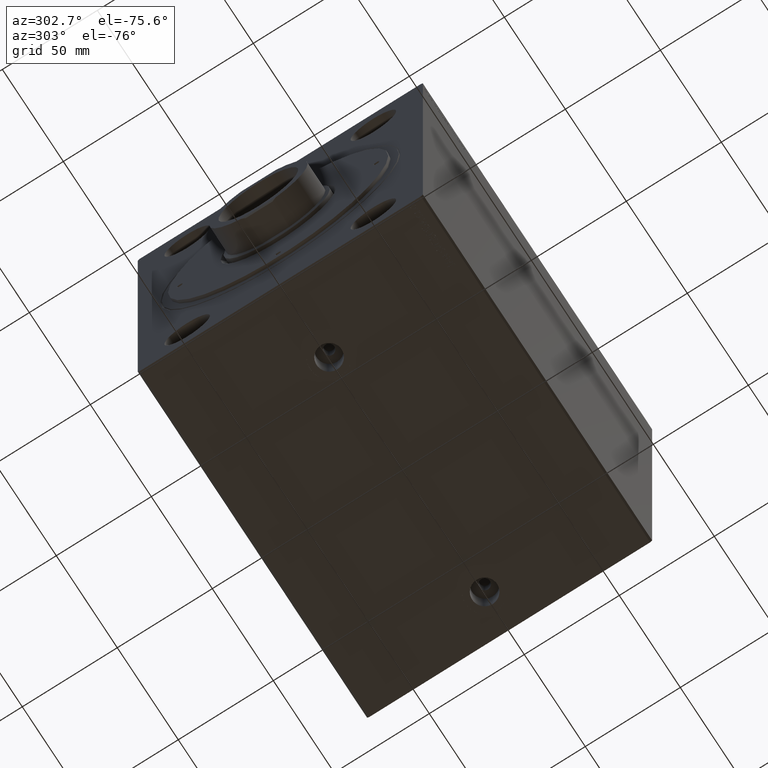
[diagram: clean part render]
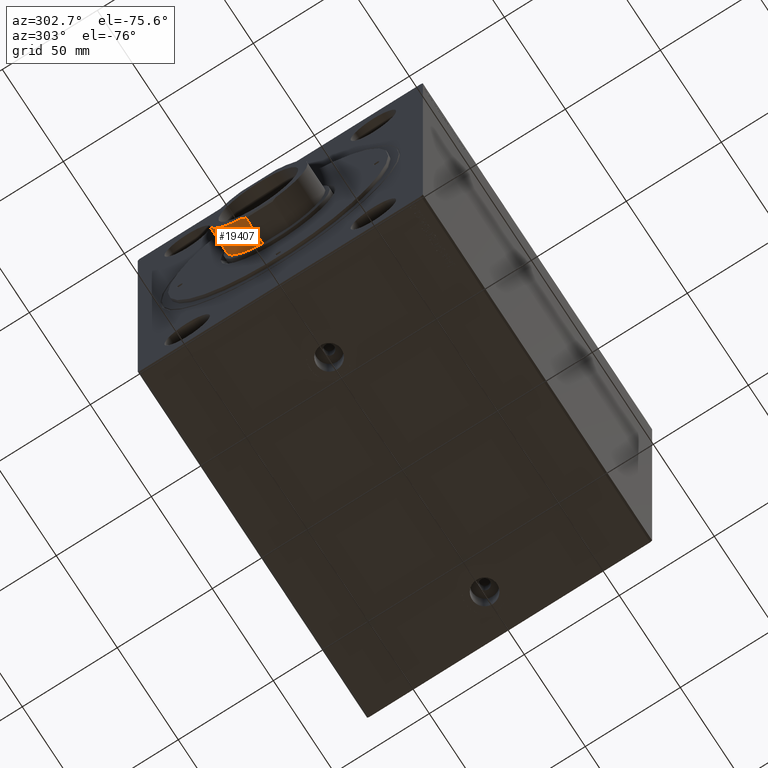
[diagram: same view with one face highlighted and labeled with its STEP entity id]
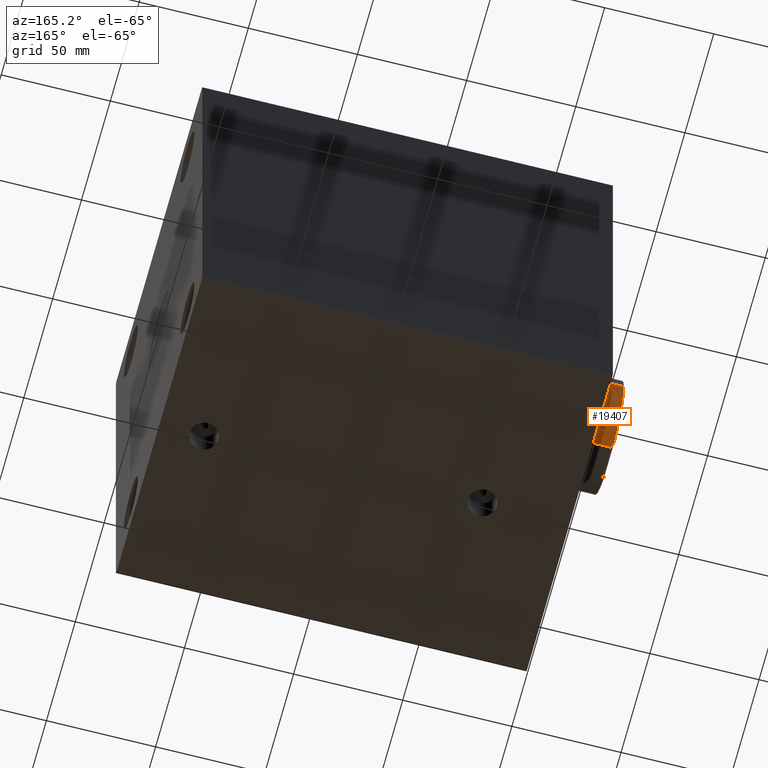
[diagram: same view with one face highlighted and labeled with its STEP entity id]
A machine part, auxiliary view. The second image highlights one B-rep face of the part: STEP entity #19407.
A second angle (auxiliary view) of the same face is appended — the face is thin or edge-on in the first view.
In plain terms, the highlighted cylindrical surface (partial cylindrical patch) has radius 25.96 mm, axis along (-1, 0, 0).
Its self-contained STEP definition (entity closure, byte-faithful):
#408 = AXIS2_PLACEMENT_3D ( 'NONE', #42984, #11752, #42318 ) ;
#1447 = CYLINDRICAL_SURFACE ( 'NONE', #408, 25.95999999999999019 ) ;
#1861 = AXIS2_PLACEMENT_3D ( 'NONE', #9338, #26807, #33569 ) ;
#3546 = LINE ( 'NONE', #41706, #3974 ) ;
#3655 = CARTESIAN_POINT ( 'NONE',  ( 24.29000000000004178, -9.160649540289041326, 103.0000000000000142 ) ) ;
#3974 = VECTOR ( 'NONE', #41006, 1000.000000000000000 ) ;
#4488 = CARTESIAN_POINT ( 'NONE',  ( 24.79513420022394143, -7.726647363026342141, 102.4948657997761217 ) ) ;
#5509 = EDGE_LOOP ( 'NONE', ( #30874, #16136, #5639, #27858, #14918 ) ) ;
#5639 = ORIENTED_EDGE ( 'NONE', *, *, #44099, .T. ) ;
#8285 = VERTEX_POINT ( 'NONE', #24688 ) ;
#8941 = CARTESIAN_POINT ( 'NONE',  ( 24.29000000000004178, -9.160649540289041326, 103.0000000000000142 ) ) ;
#9031 = CIRCLE ( 'NONE', #1861, 25.95999999999999019 ) ;
#9338 = CARTESIAN_POINT ( 'NONE',  ( 0.000000000000000000, -1.475410158749645070E-14, 103.0000000000000142 ) ) ;
#9816 = VECTOR ( 'NONE', #12942, 1000.000000000000000 ) ;
#10357 = CARTESIAN_POINT ( 'NONE',  ( 25.00000000000000000, -6.994397758206175375, 88.50000000000000000 ) ) ;
#11300 =( BOUNDED_CURVE ( )  B_SPLINE_CURVE ( 3, ( #35234, #4488, #19696, #8941 ),
 .UNSPECIFIED., .F., .F. ) 
 B_SPLINE_CURVE_WITH_KNOTS ( ( 4, 4 ),
 ( 3.414393546302234128, 3.502235245364805571 ),
 .UNSPECIFIED. ) 
 CURVE ( )  GEOMETRIC_REPRESENTATION_ITEM ( )  RATIONAL_B_SPLINE_CURVE ( ( 1.000000000000000000, 0.9993570896854834240, 0.9993570896854834240, 1.000000000000000000 ) ) 
 REPRESENTATION_ITEM ( '' )  );
#11567 = VERTEX_POINT ( 'NONE', #42330 ) ;
#11752 = DIRECTION ( 'NONE',  ( -0.000000000000000000, -1.432437047329752526E-16, 1.000000000000000000 ) ) ;
#12500 = LINE ( 'NONE', #29786, #9816 ) ;
#12942 = DIRECTION ( 'NONE',  ( -0.000000000000000000, -1.432437047329752280E-16, 1.000000000000000000 ) ) ;
#14918 = ORIENTED_EDGE ( 'NONE', *, *, #40405, .F. ) ;
#14978 = DIRECTION ( 'NONE',  ( 0.000000000000000000, -1.000000000000000000, 0.000000000000000000 ) ) ;
#16136 = ORIENTED_EDGE ( 'NONE', *, *, #27420, .T. ) ;
#16463 = EDGE_CURVE ( 'NONE', #8285, #11567, #12500, .T. ) ;
#19407 = ADVANCED_FACE ( 'NONE', ( #42524 ), #1447, .T. ) ;
#19520 = VERTEX_POINT ( 'NONE', #3655 ) ;
#19696 = CARTESIAN_POINT ( 'NONE',  ( 24.55831528023094990, -8.449195824245752107, 102.7316847197691203 ) ) ;
#22051 = CIRCLE ( 'NONE', #36398, 25.95999999999999019 ) ;
#24688 = CARTESIAN_POINT ( 'NONE',  ( 3.304097064099558194E-15, -25.96000000000000441, 88.50000000000001421 ) ) ;
#24855 = CARTESIAN_POINT ( 'NONE',  ( 25.00000000000000000, -6.994397758206177151, 102.2900000000000489 ) ) ;
#25525 = CARTESIAN_POINT ( 'NONE',  ( 0.000000000000000000, -1.267706786886830992E-14, 88.50000000000001421 ) ) ;
#26807 = DIRECTION ( 'NONE',  ( -0.000000000000000000, -1.432437047329752526E-16, 1.000000000000000000 ) ) ;
#27420 = EDGE_CURVE ( 'NONE', #8285, #37509, #22051, .T. ) ;
#27858 = ORIENTED_EDGE ( 'NONE', *, *, #32606, .T. ) ;
#29786 = CARTESIAN_POINT ( 'NONE',  ( 0.000000000000000000, -25.96000000000000441, 103.0000000000000142 ) ) ;
#30874 = ORIENTED_EDGE ( 'NONE', *, *, #16463, .F. ) ;
#32606 = EDGE_CURVE ( 'NONE', #41384, #19520, #11300, .T. ) ;
#33569 = DIRECTION ( 'NONE',  ( 0.000000000000000000, -1.000000000000000000, 0.000000000000000000 ) ) ;
#35234 = CARTESIAN_POINT ( 'NONE',  ( 25.00000000000000000, -6.994397758206177151, 102.2900000000000489 ) ) ;
#36398 = AXIS2_PLACEMENT_3D ( 'NONE', #25525, #42385, #14978 ) ;
#37509 = VERTEX_POINT ( 'NONE', #10357 ) ;
#40405 = EDGE_CURVE ( 'NONE', #11567, #19520, #9031, .T. ) ;
#41006 = DIRECTION ( 'NONE',  ( -0.000000000000000000, -1.432437047329752280E-16, 1.000000000000000000 ) ) ;
#41384 = VERTEX_POINT ( 'NONE', #24855 ) ;
#41706 = CARTESIAN_POINT ( 'NONE',  ( 25.00000000000000000, -6.994397758206177151, 103.0000000000000142 ) ) ;
#42318 = DIRECTION ( 'NONE',  ( 0.000000000000000000, -1.000000000000000000, 0.000000000000000000 ) ) ;
#42330 = CARTESIAN_POINT ( 'NONE',  ( 0.000000000000000000, -25.96000000000000441, 103.0000000000000142 ) ) ;
#42385 = DIRECTION ( 'NONE',  ( -0.000000000000000000, -1.432437047329752526E-16, 1.000000000000000000 ) ) ;
#42524 = FACE_OUTER_BOUND ( 'NONE', #5509, .T. ) ;
#42984 = CARTESIAN_POINT ( 'NONE',  ( 0.000000000000000000, -1.475410158749645070E-14, 103.0000000000000142 ) ) ;
#44099 = EDGE_CURVE ( 'NONE', #37509, #41384, #3546, .T. ) ;